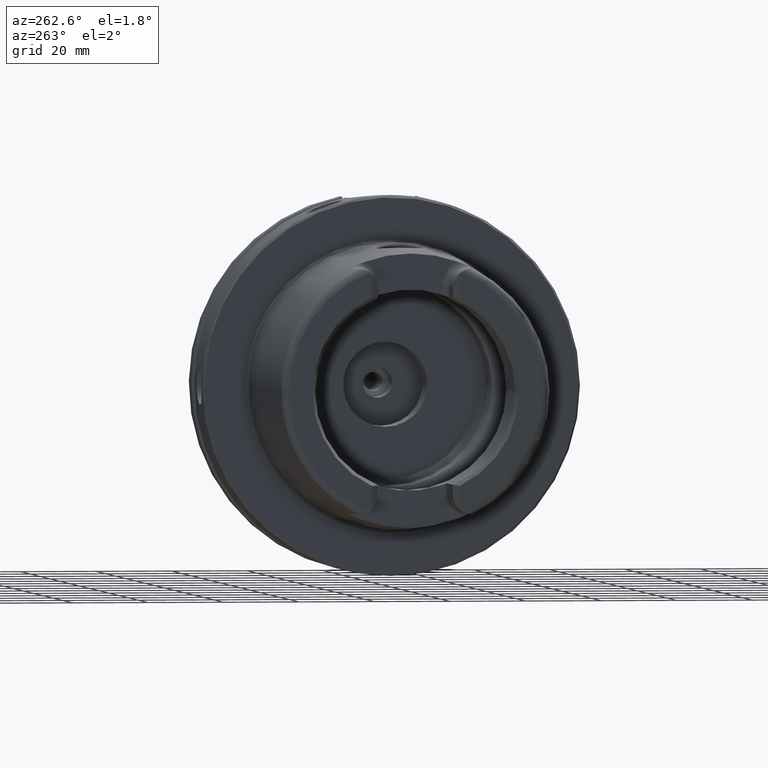
[diagram: clean part render]
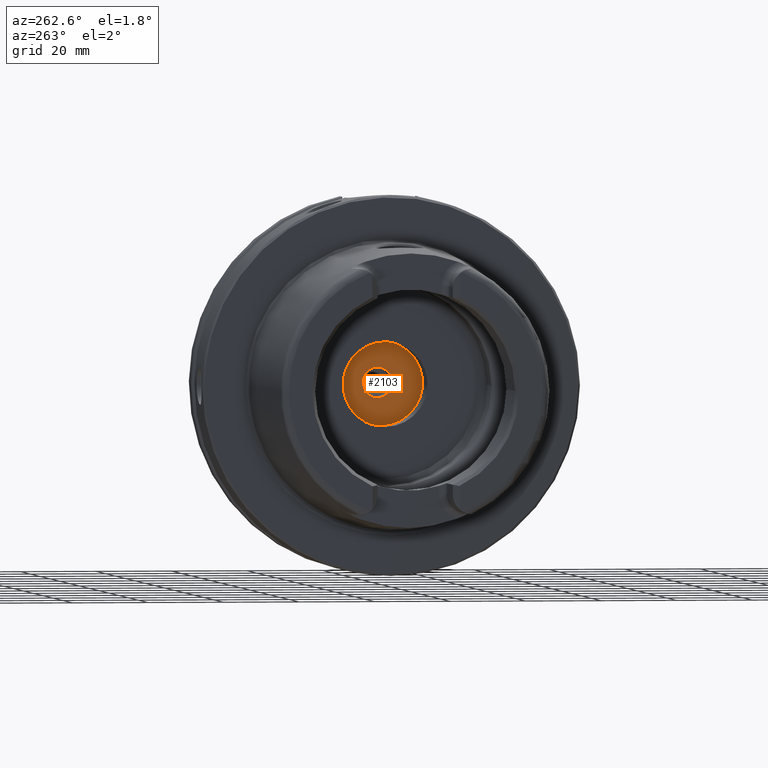
[diagram: same view with one face highlighted and labeled with its STEP entity id]
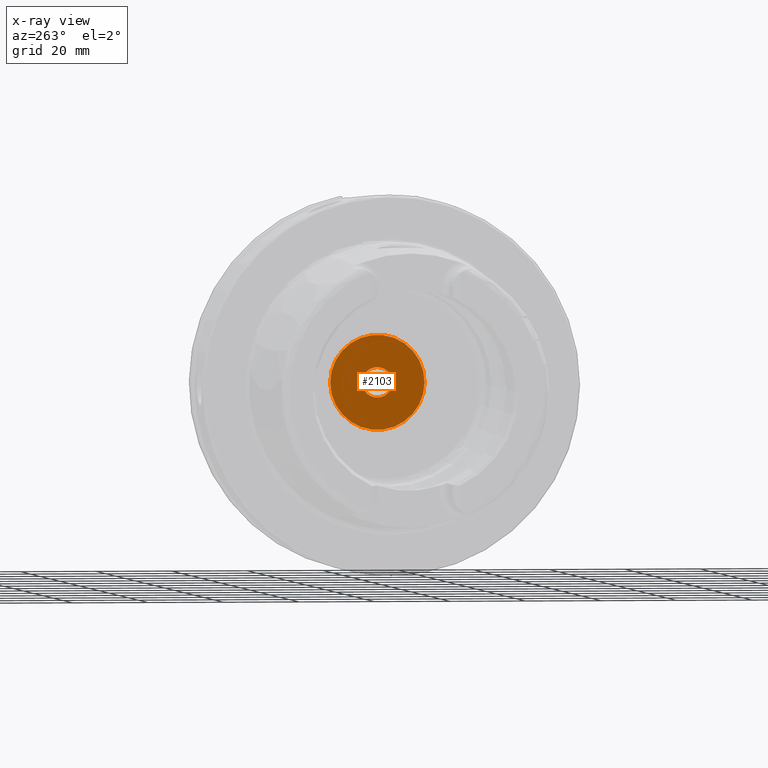
[diagram: x-ray of the same camera — body ghosted, the highlighted face saturated]
A machine part, auxiliary view. The second image highlights one B-rep face of the part: STEP entity #2103.
The next image is the same camera in x-ray: the body ghosted, the highlighted face saturated — about 0% of this face is hidden behind the body in this view.
In plain terms, the highlighted planar face has unit normal (1, 0, 0).
Its self-contained STEP definition (entity closure, byte-faithful):
#141=FACE_BOUND('',#642,.T.);
#176=PLANE('',#2364);
#513=FACE_OUTER_BOUND('',#641,.T.);
#641=EDGE_LOOP('',(#1889));
#642=EDGE_LOOP('',(#1890));
#691=CIRCLE('',#2186,4.);
#778=CIRCLE('',#2365,12.5);
#830=VERTEX_POINT('',#3122);
#997=VERTEX_POINT('',#4574);
#1050=EDGE_CURVE('',#830,#830,#691,.T.);
#1303=EDGE_CURVE('',#997,#997,#778,.T.);
#1889=ORIENTED_EDGE('',*,*,#1303,.T.);
#1890=ORIENTED_EDGE('',*,*,#1050,.T.);
#2103=ADVANCED_FACE('',(#513,#141),#176,.F.);
#2186=AXIS2_PLACEMENT_3D('',#3123,#2502,#2503);
#2364=AXIS2_PLACEMENT_3D('',#4573,#2944,#2945);
#2365=AXIS2_PLACEMENT_3D('',#4575,#2946,#2947);
#2502=DIRECTION('center_axis',(1.,0.,0.));
#2503=DIRECTION('ref_axis',(0.,0.,1.));
#2944=DIRECTION('center_axis',(1.,0.,0.));
#2945=DIRECTION('ref_axis',(0.,0.,-1.));
#2946=DIRECTION('center_axis',(-1.,0.,0.));
#2947=DIRECTION('ref_axis',(0.,0.,1.));
#3122=CARTESIAN_POINT('',(28.5,-4.89858719658941E-16,-4.));
#3123=CARTESIAN_POINT('Origin',(28.5,0.,0.));
#4573=CARTESIAN_POINT('Origin',(28.5,12.5,0.));
#4574=CARTESIAN_POINT('',(28.5,-12.5,1.53080849893419E-15));
#4575=CARTESIAN_POINT('Origin',(28.5,0.,0.));